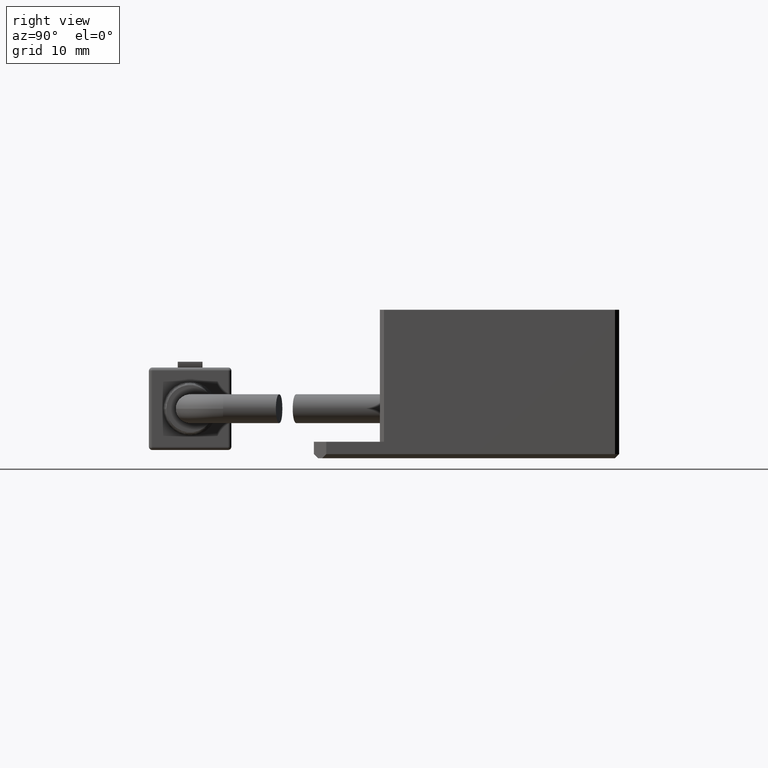
[diagram: clean part render]
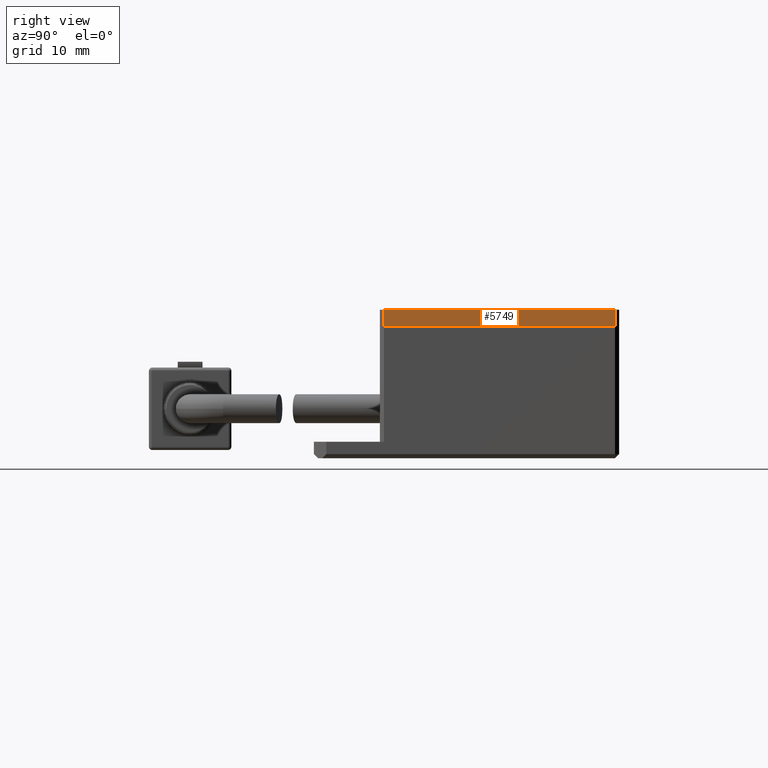
[diagram: same view with one face highlighted and labeled with its STEP entity id]
A machine part, right view. The second image highlights one B-rep face of the part: STEP entity #5749.
In plain terms, the highlighted planar face has unit normal (-1, -0, 0).
Its self-contained STEP definition (entity closure, byte-faithful):
#125 = DIRECTION ( 'NONE',  ( -1.196361017915039700E-016, 1.000000000000000000, -0.0000000000000000000 ) ) ;
#919 = VECTOR ( 'NONE', #5153, 1000.000000000000000 ) ;
#937 = ORIENTED_EDGE ( 'NONE', *, *, #8049, .T. ) ;
#954 = PLANE ( 'NONE',  #5220 ) ;
#1298 = CARTESIAN_POINT ( 'NONE',  ( 18.50000000000000400, 13.99999999999999800, 0.0000000000000000000 ) ) ;
#1809 = LINE ( 'NONE', #3406, #6024 ) ;
#1836 = EDGE_CURVE ( 'NONE', #8370, #10222, #5163, .T. ) ;
#2692 = LINE ( 'NONE', #4130, #4637 ) ;
#2765 = CARTESIAN_POINT ( 'NONE',  ( 18.50000000000000400, 13.99999999999999800, 2.000000000000000000 ) ) ;
#3406 = CARTESIAN_POINT ( 'NONE',  ( 18.50000000000000400, 13.99999999999999800, 2.000000000000000000 ) ) ;
#3508 = DIRECTION ( 'NONE',  ( -1.000000000000000000, -1.196361017915040000E-016, 0.0000000000000000000 ) ) ;
#3822 = EDGE_CURVE ( 'NONE', #9820, #10222, #1809, .T. ) ;
#4013 = FACE_OUTER_BOUND ( 'NONE', #9796, .T. ) ;
#4130 = CARTESIAN_POINT ( 'NONE',  ( 18.50000000000000700, -13.99999999999998800, 2.000000000000000000 ) ) ;
#4346 = ORIENTED_EDGE ( 'NONE', *, *, #1836, .F. ) ;
#4393 = VECTOR ( 'NONE', #125, 1000.000000000000000 ) ;
#4605 = ORIENTED_EDGE ( 'NONE', *, *, #8519, .T. ) ;
#4637 = VECTOR ( 'NONE', #8349, 1000.000000000000000 ) ;
#5153 = DIRECTION ( 'NONE',  ( -1.196361017915039700E-016, 1.000000000000000000, -0.0000000000000000000 ) ) ;
#5163 = LINE ( 'NONE', #6016, #919 ) ;
#5220 = AXIS2_PLACEMENT_3D ( 'NONE', #8583, #3508, #9411 ) ;
#5749 = ADVANCED_FACE ( 'NONE', ( #4013 ), #954, .F. ) ;
#6016 = CARTESIAN_POINT ( 'NONE',  ( 18.50000000000000400, 14.49999999999999800, 2.000000000000000000 ) ) ;
#6024 = VECTOR ( 'NONE', #9311, 1000.000000000000000 ) ;
#6645 = LINE ( 'NONE', #10284, #4393 ) ;
#7463 = ORIENTED_EDGE ( 'NONE', *, *, #3822, .T. ) ;
#8049 = EDGE_CURVE ( 'NONE', #8370, #10615, #2692, .T. ) ;
#8349 = DIRECTION ( 'NONE',  ( 0.0000000000000000000, 0.0000000000000000000, -1.000000000000000000 ) ) ;
#8370 = VERTEX_POINT ( 'NONE', #10518 ) ;
#8519 = EDGE_CURVE ( 'NONE', #10615, #9820, #6645, .T. ) ;
#8583 = CARTESIAN_POINT ( 'NONE',  ( 18.50000000000000400, 14.49999999999999800, 2.000000000000000000 ) ) ;
#9311 = DIRECTION ( 'NONE',  ( 0.0000000000000000000, 0.0000000000000000000, 1.000000000000000000 ) ) ;
#9411 = DIRECTION ( 'NONE',  ( 1.196361017915040000E-016, -1.000000000000000000, 0.0000000000000000000 ) ) ;
#9796 = EDGE_LOOP ( 'NONE', ( #4346, #937, #4605, #7463 ) ) ;
#9820 = VERTEX_POINT ( 'NONE', #1298 ) ;
#10222 = VERTEX_POINT ( 'NONE', #2765 ) ;
#10284 = CARTESIAN_POINT ( 'NONE',  ( 18.50000000000000400, 14.49999999999999800, 0.0000000000000000000 ) ) ;
#10518 = CARTESIAN_POINT ( 'NONE',  ( 18.50000000000000700, -13.99999999999999100, 2.000000000000000000 ) ) ;
#10615 = VERTEX_POINT ( 'NONE', #10914 ) ;
#10914 = CARTESIAN_POINT ( 'NONE',  ( 18.50000000000000700, -13.99999999999998800, 0.0000000000000000000 ) ) ;